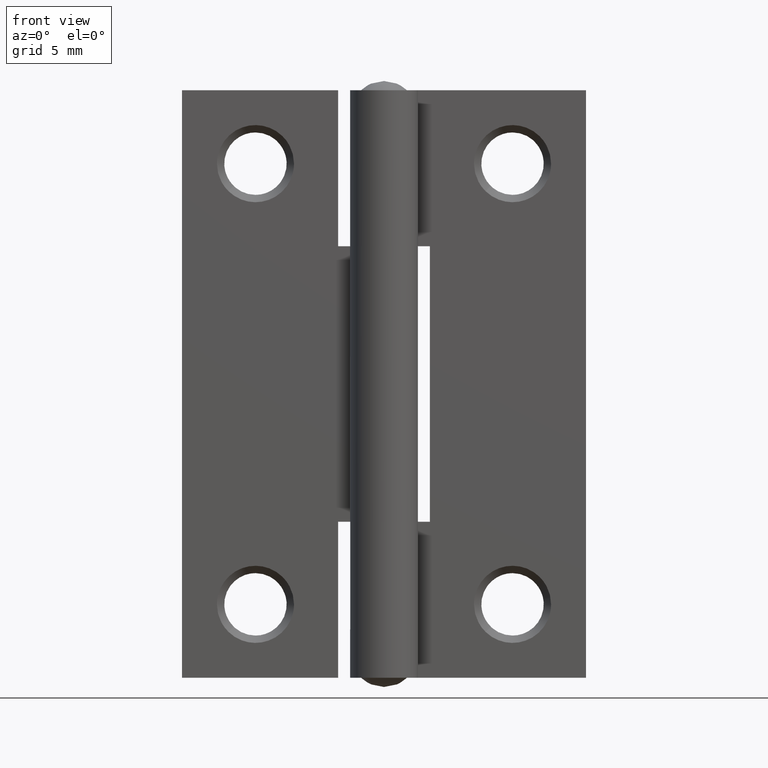
[diagram: clean part render]
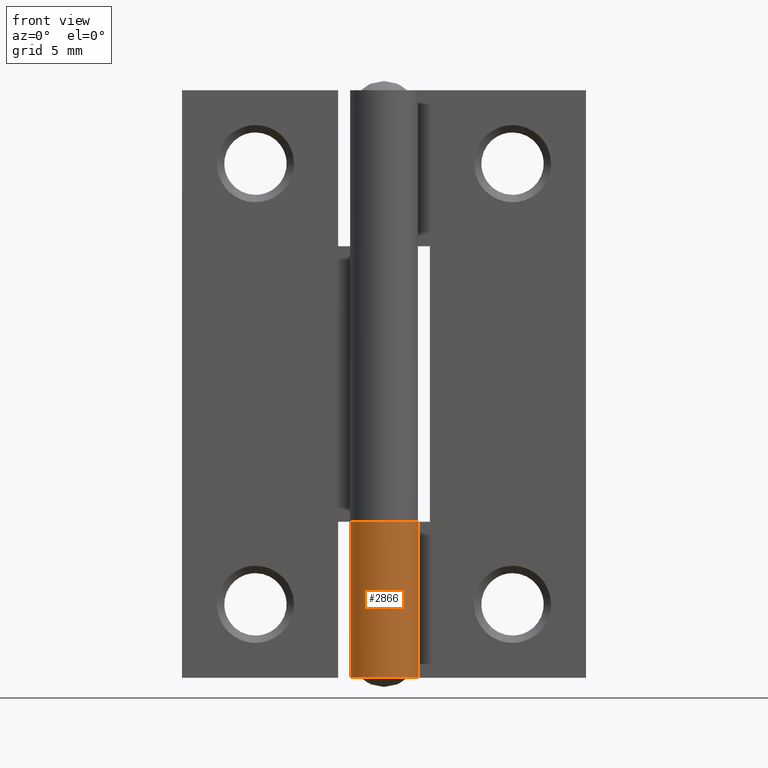
[diagram: same view with one face highlighted and labeled with its STEP entity id]
A machine part, front view. The second image highlights one B-rep face of the part: STEP entity #2866.
In plain terms, the highlighted face is a freeform B-spline surface patch.
Its self-contained STEP definition (entity closure, byte-faithful):
#2258=CARTESIAN_POINT('',(1.556444024024065,0.999990999999838,8.500007000000000));
#2259=VERTEX_POINT('',#2258);
#2265=CARTESIAN_POINT('',(1.556444024024065,0.999990999999838,0.0));
#2266=VERTEX_POINT('',#2265);
#2267=CARTESIAN_POINT('',(1.556444024024065,0.999990999999838,8.500007000000000));
#2268=CARTESIAN_POINT('',(1.556444024024065,0.999990999999838,0.0));
#2269=QUASI_UNIFORM_CURVE('',1,(#2267,#2268),.UNSPECIFIED.,.F.,.U.);
#2270=EDGE_CURVE('',#2259,#2266,#2269,.T.);
#2615=CARTESIAN_POINT('',(0.005770608245164,1.849990999999940,8.500007000000000));
#2616=VERTEX_POINT('',#2615);
#2622=CARTESIAN_POINT('',(2.983724E-013,1.849990999999940,8.500007000000000));
#2623=VERTEX_POINT('',#2622);
#2624=CARTESIAN_POINT('',(2.983724E-013,1.849990999999940,8.500007000000000));
#2625=CARTESIAN_POINT('',(0.005770608245164,1.849990999999940,8.500007000000000));
#2626=QUASI_UNIFORM_CURVE('',1,(#2624,#2625),.UNSPECIFIED.,.F.,.U.);
#2627=EDGE_CURVE('',#2623,#2616,#2626,.T.);
#2629=CARTESIAN_POINT('',(1.556444024024065,0.999990999999838,8.500007000000000));
#2630=CARTESIAN_POINT('',(1.663182164208903,0.834074318007209,8.500006999999998));
#2631=CARTESIAN_POINT('',(1.773776176500190,0.579979111441954,8.500006999999998));
#2632=CARTESIAN_POINT('',(1.843309861385913,0.216772540107121,8.500007000000013));
#2633=CARTESIAN_POINT('',(1.857344659611069,-0.063713562687438,8.500006999999943));
#2634=CARTESIAN_POINT('',(1.819183694057184,-0.393701025195600,8.500007000000087));
#2635=CARTESIAN_POINT('',(1.705470093225024,-0.753619705901259,8.500006999999950));
#2636=CARTESIAN_POINT('',(1.513595120830422,-1.086556436584161,8.500006999999998));
#2637=CARTESIAN_POINT('',(1.232588173468478,-1.401142488577544,8.500007000000037));
#2638=CARTESIAN_POINT('',(0.938836743702342,-1.608487575989293,8.500006999999986));
#2639=CARTESIAN_POINT('',(0.600933693844514,-1.758757364587857,8.500006999999982));
#2640=CARTESIAN_POINT('',(0.235543514138772,-1.853460982470659,8.500007000000075));
#2641=CARTESIAN_POINT('',(-0.175655824535270,-1.857966195052512,8.500006999999846));
#2642=CARTESIAN_POINT('',(-0.562509553810400,-1.772986345003254,8.500007000000158));
#2643=CARTESIAN_POINT('',(-0.910309444972711,-1.627336665746021,8.500006999999778));
#2644=CARTESIAN_POINT('',(-1.235412233616572,-1.398499229758266,8.500007000000023));
#2645=CARTESIAN_POINT('',(-1.495747638484544,-1.107779034263572,8.500007000000050));
#2646=CARTESIAN_POINT('',(-1.689374143195106,-0.784411868454740,8.500006999999966));
#2647=CARTESIAN_POINT('',(-1.797770953685457,-0.476290892197458,8.500007000000007));
#2648=CARTESIAN_POINT('',(-1.851499645372847,-0.149127508434176,8.500007000000013));
#2649=CARTESIAN_POINT('',(-1.854317260718325,0.195978516252528,8.500007000000888));
#2650=CARTESIAN_POINT('',(-1.777270975692846,0.559826269896740,8.500006999999746));
#2651=CARTESIAN_POINT('',(-1.625340096494590,0.904565846231529,8.500006999999860));
#2652=CARTESIAN_POINT('',(-1.456738037382838,1.153338894174333,8.500007000000135));
#2653=CARTESIAN_POINT('',(-1.225031266502913,1.399310752064957,8.500006999999769));
#2654=CARTESIAN_POINT('',(-0.957863237941233,1.598155499241198,8.500007000000524));
#2655=CARTESIAN_POINT('',(-0.673642362437452,1.729648411708021,8.500006999999508));
#2656=CARTESIAN_POINT('',(-0.362700621468370,1.823832951876219,8.500007000000567));
#2657=CARTESIAN_POINT('',(-0.152730073901755,1.850032425514551,8.500006999997874));
#2658=CARTESIAN_POINT('',(2.983724E-013,1.849990999999940,8.500007000000000));
#2659=B_SPLINE_CURVE_WITH_KNOTS('',3,(#2629,#2630,#2631,#2632,#2633,#2634,#2635,#2636,#2637,#2638,#2639,#2640,#2641,#2642,#2643,#2644,#2645,#2646,#2647,#2648,#2649,#2650,#2651,#2652,#2653,#2654,#2655,#2656,#2657,#2658),.UNSPECIFIED.,.F.,.U.,(4,1,1,1,1,1,1,1,1,1,1,1,1,1,1,1,1,1,1,1,1,1,1,1,1,1,1,4),(0.000000169057214,0.591801870711809,0.820894001256335,1.107261010445798,1.431804982839116,1.813628214799422,2.233613777170008,2.577226640698813,3.073598788070681,3.302689572462235,3.684506392993457,4.199964099535815,4.524498870932304,4.868147340561943,5.326292315013975,5.708113656317492,6.032661227003075,6.452658755033914,6.681747454687054,7.025384658920455,7.483547840749387,7.789005186222392,8.151723251408225,8.380815394039331,8.800814703651252,9.144457152275656,9.316263839576822,9.774439306901945),.UNSPECIFIED.);
#2660=EDGE_CURVE('',#2259,#2623,#2659,.T.);
#2673=CARTESIAN_POINT('',(0.005770608245164,1.849990999999845,0.0));
#2674=VERTEX_POINT('',#2673);
#2690=CARTESIAN_POINT('',(1.556444024024065,0.999990999999838,0.0));
#2691=CARTESIAN_POINT('',(1.649432145170698,0.855384177453729,0.0));
#2692=CARTESIAN_POINT('',(1.786517866100940,0.557524582566119,0.0));
#2693=CARTESIAN_POINT('',(1.857508748669070,0.140042800198207,0.0));
#2694=CARTESIAN_POINT('',(1.846726641520176,-0.185495457685269,0.0));
#2695=CARTESIAN_POINT('',(1.799687911605523,-0.455752450492462,0.0));
#2696=CARTESIAN_POINT('',(1.722036614441438,-0.692519837416046,0.0));
#2697=CARTESIAN_POINT('',(1.595575289351028,-0.950149757261972,0.0));
#2698=CARTESIAN_POINT('',(1.395275884085461,-1.239265912392239,0.0));
#2699=CARTESIAN_POINT('',(1.081467390600051,-1.524445484317677,0.0));
#2700=CARTESIAN_POINT('',(0.702560931915767,-1.726409351578496,0.0));
#2701=CARTESIAN_POINT('',(0.308820932272842,-1.838850572029056,0.0));
#2702=CARTESIAN_POINT('',(-0.062389195836767,-1.861634631175223,0.0));
#2703=CARTESIAN_POINT('',(-0.435666252289857,-1.809006258568029,0.0));
#2704=CARTESIAN_POINT('',(-0.763138054399687,-1.698340386659315,0.0));
#2705=CARTESIAN_POINT('',(-1.067992095208021,-1.522940711967985,0.0));
#2706=CARTESIAN_POINT('',(-1.350894978722720,-1.283347618611594,0.0));
#2707=CARTESIAN_POINT('',(-1.583301859836598,-0.984828079963957,0.0));
#2708=CARTESIAN_POINT('',(-1.759453000459257,-0.615168088101842,0.0));
#2709=CARTESIAN_POINT('',(-1.849726799477353,-0.234815493564759,0.0));
#2710=CARTESIAN_POINT('',(-1.856038024282351,0.155616293250101,0.0));
#2711=CARTESIAN_POINT('',(-1.791244824377499,0.501486081551339,0.0));
#2712=CARTESIAN_POINT('',(-1.667817474923298,0.823656401808403,0.0));
#2713=CARTESIAN_POINT('',(-1.471659044060128,1.146176823834086,0.0));
#2714=CARTESIAN_POINT('',(-1.199598999631120,1.427555712169679,0.0));
#2715=CARTESIAN_POINT('',(-0.901098101409519,1.625409231821283,0.0));
#2716=CARTESIAN_POINT('',(-0.603836992997785,1.758241754951628,0.0));
#2717=CARTESIAN_POINT('',(-0.306273940322861,1.834176473556484,0.0));
#2718=CARTESIAN_POINT('',(-0.089732321705838,1.850291329955950,0.0));
#2719=CARTESIAN_POINT('',(0.005770608245164,1.849990999999845,0.0));
#2720=B_SPLINE_CURVE_WITH_KNOTS('',3,(#2690,#2691,#2692,#2693,#2694,#2695,#2696,#2697,#2698,#2699,#2700,#2701,#2702,#2703,#2704,#2705,#2706,#2707,#2708,#2709,#2710,#2711,#2712,#2713,#2714,#2715,#2716,#2717,#2718,#2719),.UNSPECIFIED.,.F.,.U.,(4,1,1,1,1,1,1,1,1,1,1,1,1,1,1,1,1,1,1,1,1,1,1,1,1,1,1,4),(0.000000168962334,0.515752112177038,0.974202137048966,1.260732879795119,1.489961094213413,1.795590328208170,2.005723672460754,2.349558437254700,2.846196756086048,3.266439402286368,3.629379159947582,4.068732991088337,4.374361380005312,4.756415135292892,5.100231773599987,5.424953510556456,5.864310878694266,6.227250065626236,6.647499390839448,7.029539577294827,7.392466180217404,7.698099247930522,8.061031944885713,8.519487977676052,8.863328568268237,9.130753838734901,9.493707129395295,9.780219996222133),.UNSPECIFIED.);
#2721=EDGE_CURVE('',#2266,#2674,#2720,.T.);
#2833=CARTESIAN_POINT('',(0.054195749578872,1.849205997374971,8.712507175000001));
#2834=CARTESIAN_POINT('',(0.054195749578872,1.849205997374971,-0.217812679375001));
#2835=CARTESIAN_POINT('',(-2.243014609710416,1.916531669873372,8.712507175000001));
#2836=CARTESIAN_POINT('',(-2.243014609710416,1.916531669873372,-0.217812679375001));
#2837=CARTESIAN_POINT('',(-1.818105192481784,-0.342043139194020,8.712507175000001));
#2838=CARTESIAN_POINT('',(-1.818105192481784,-0.342043139194020,-0.217812679375001));
#2839=CARTESIAN_POINT('',(-1.393195775253151,-2.600617948261411,8.712507175000001));
#2840=CARTESIAN_POINT('',(-1.393195775253151,-2.600617948261411,-0.217812679375001));
#2841=CARTESIAN_POINT('',(0.722494324348187,-1.703086008187823,8.712507175000001));
#2842=CARTESIAN_POINT('',(0.722494324348187,-1.703086008187823,-0.217812679375001));
#2843=CARTESIAN_POINT('',(2.838184423949526,-0.805554068114235,8.712507175000001));
#2844=CARTESIAN_POINT('',(2.838184423949526,-0.805554068114235,-0.217812679375001));
#2845=CARTESIAN_POINT('',(1.509457391183753,1.069597300016041,8.712507175000001));
#2846=CARTESIAN_POINT('',(1.509457391183753,1.069597300016041,-0.217812679375001));
#2854=(BOUNDED_SURFACE()B_SPLINE_SURFACE(1,2,((#2833,#2835,#2837,#2839,#2841,#2843,#2845),(#2834,#2836,#2838,#2840,#2842,#2844,#2846)),.UNSPECIFIED.,.F.,.F.,.U.)B_SPLINE_SURFACE_WITH_KNOTS((2,2),(3,2,2,3),(0.0,8.930319854375002),(0.0,3.542839599013914,7.085679198027829,10.628518797041741),.UNSPECIFIED.)GEOMETRIC_REPRESENTATION_ITEM()RATIONAL_B_SPLINE_SURFACE(((1.0,0.627057105746662,1.0,0.627057105746662,1.0,0.627057105746662,1.0),(1.0,0.627057105746662,1.0,0.627057105746662,1.0,0.627057105746662,1.0)))REPRESENTATION_ITEM('')SURFACE());
#2855=ORIENTED_EDGE('',*,*,#2660,.T.);
#2856=ORIENTED_EDGE('',*,*,#2627,.T.);
#2857=CARTESIAN_POINT('',(0.005770608245164,1.849990999999940,8.500007000000000));
#2858=CARTESIAN_POINT('',(0.005770608245164,1.849990999999845,0.0));
#2859=QUASI_UNIFORM_CURVE('',1,(#2857,#2858),.UNSPECIFIED.,.F.,.U.);
#2860=EDGE_CURVE('',#2616,#2674,#2859,.T.);
#2861=ORIENTED_EDGE('',*,*,#2860,.T.);
#2862=ORIENTED_EDGE('',*,*,#2721,.F.);
#2863=ORIENTED_EDGE('',*,*,#2270,.F.);
#2864=EDGE_LOOP('',(#2855,#2856,#2861,#2862,#2863));
#2865=FACE_OUTER_BOUND('',#2864,.T.);
#2866=ADVANCED_FACE('',(#2865),#2854,.T.);